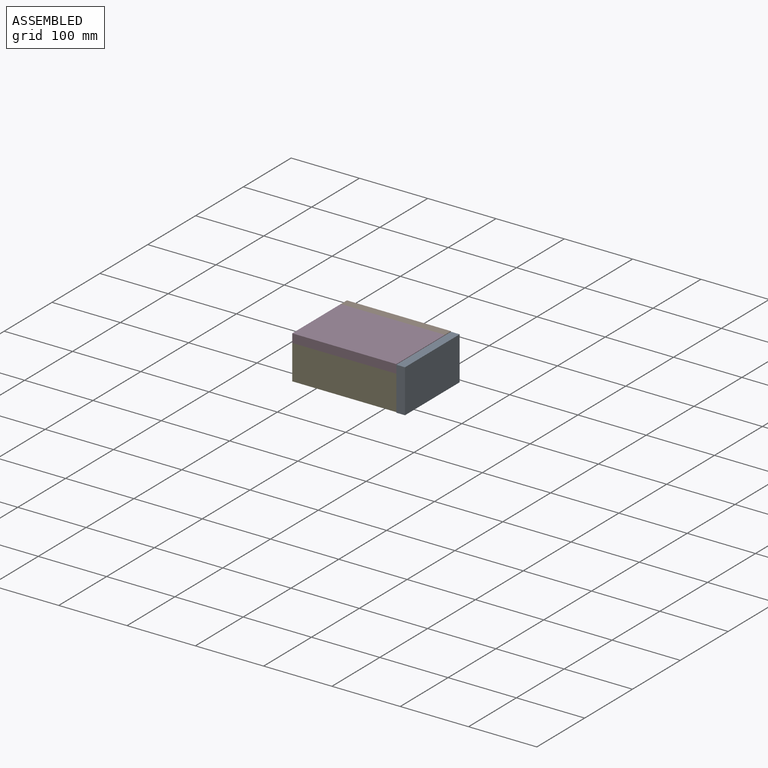
[diagram: assembled view]
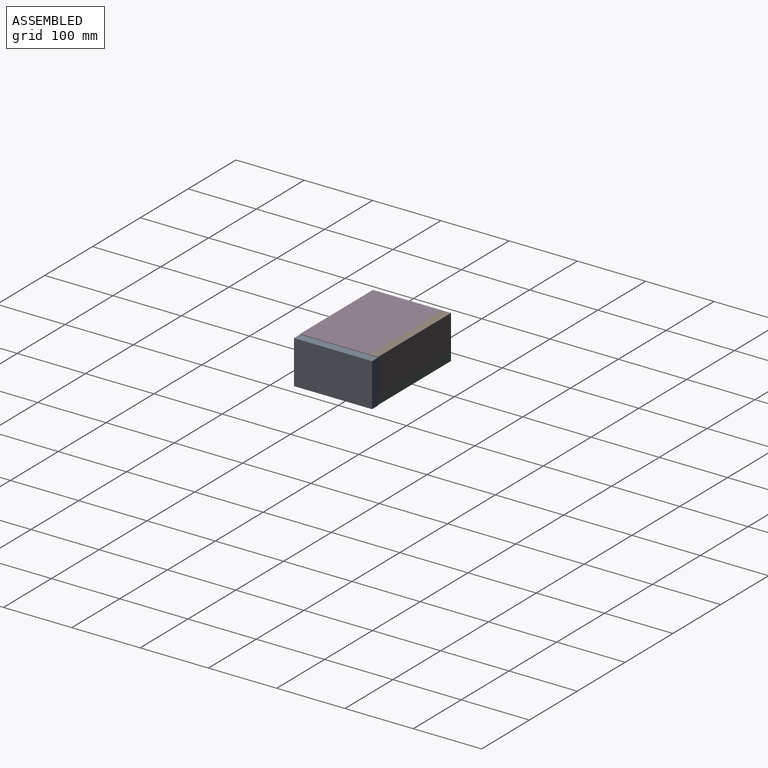
[diagram: assembled view, second angle]
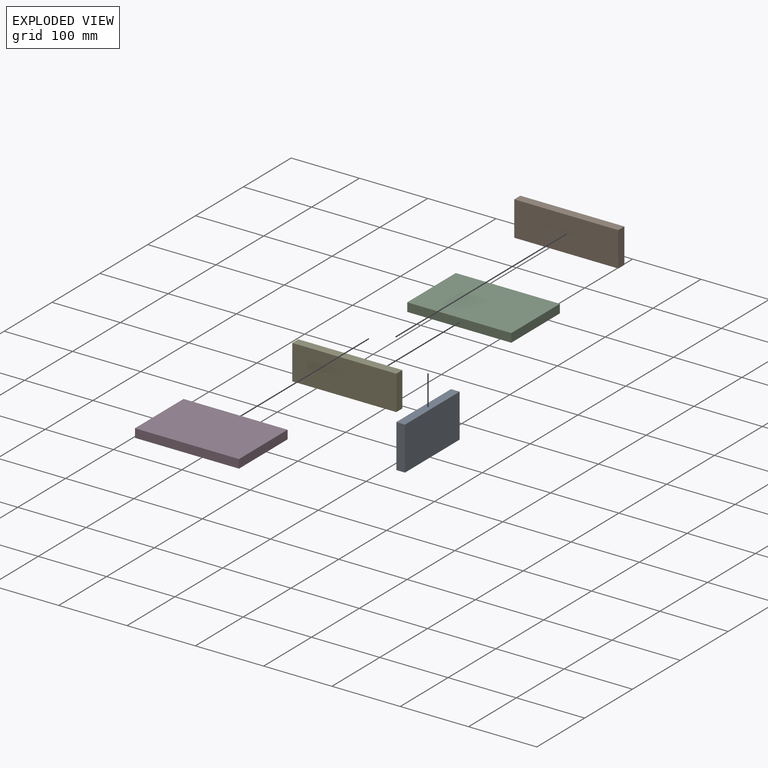
[diagram: exploded view]
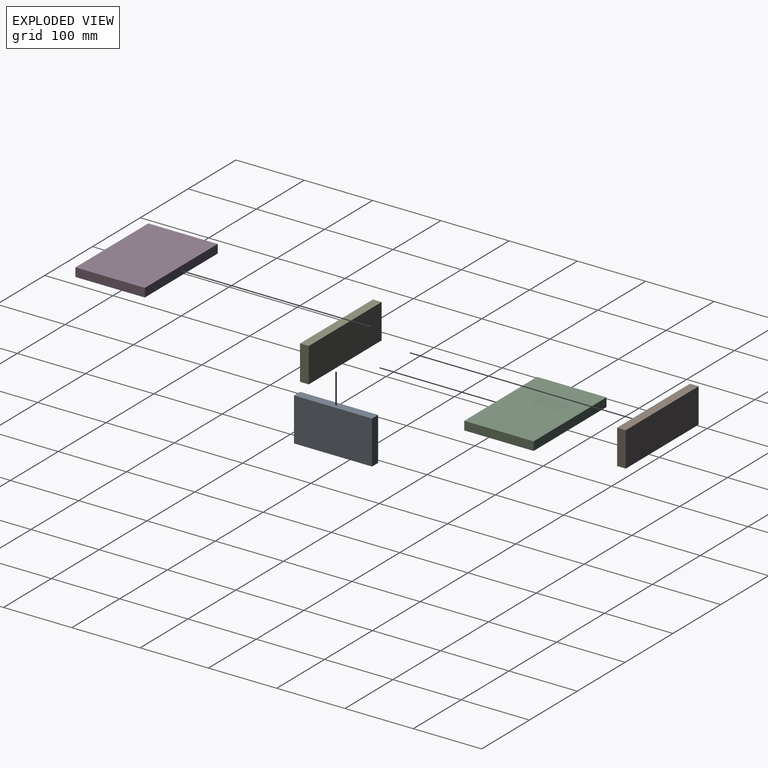
[diagram: exploded view, second angle]
ASSEMBLY  parts=5 mates=4
PART A: 6 faces, bbox 63.5x114.3x12.7 mm
  f0: plane 114.3x12.7mm, normal (1,0,0), area 1451.6mm2, adj f1,f3,f4,f5
  f1: plane 63.5x12.7mm, normal (0,1,0), area 806.5mm2, adj f0,f2,f4,f5
  f2: plane 114.3x12.7mm, normal (-1,0,0), area 1451.6mm2, adj f1,f3,f4,f5
  f3: plane 63.5x12.7mm, normal (0,-1,0), area 806.5mm2, adj f0,f2,f4,f5
  f4: plane 114.3x63.5mm, normal (0,0,1), area 7258.1mm2, adj f0,f1,f2,f3
  f5: plane 114.3x63.5mm, normal (0,0,-1), area 7258.1mm2, adj f0,f1,f2,f3
PART B: 6 faces, bbox 152.4x12.7x50.8 mm
  f0: plane 152.4x12.7mm, normal (0,0,-1), area 1935.5mm2, adj f1,f3,f4,f5
  f1: plane 50.8x12.7mm, normal (1,0,0), area 645.2mm2, adj f0,f2,f4,f5
  f2: plane 152.4x12.7mm, normal (0,0,1), area 1935.5mm2, adj f1,f3,f4,f5
  f3: plane 50.8x12.7mm, normal (-1,0,0), area 645.2mm2, adj f0,f2,f4,f5
  f4: plane 152.4x50.8mm, normal (0,-1,0), area 7741.9mm2, adj f0,f1,f2,f3
  f5: plane 152.4x50.8mm, normal (0,1,0), area 7741.9mm2, adj f0,f1,f2,f3
PART C: 6 faces, bbox 152.4x101.6x12.7 mm
  f0: plane 152.4x12.7mm, normal (0,-1,0), area 1935.5mm2, adj f1,f3,f4,f5
  f1: plane 101.6x12.7mm, normal (1,0,0), area 1290.3mm2, adj f0,f2,f4,f5
  f2: plane 152.4x12.7mm, normal (0,1,0), area 1935.5mm2, adj f1,f3,f4,f5
  f3: plane 101.6x12.7mm, normal (-1,0,0), area 1290.3mm2, adj f0,f2,f4,f5
  f4: plane 152.4x101.6mm, normal (0,0,1), area 15483.8mm2, adj f0,f1,f2,f3
  f5: plane 152.4x101.6mm, normal (0,0,-1), area 15483.8mm2, adj f0,f1,f2,f3
PART D: same geometry as C
PART E: same geometry as B
PLACE A rot(axis=(0,1,0),90deg) t=(23.02,-112.63,-23.42)mm
PLACE B t=(-53.18,-55.48,-16.29)mm
PLACE C t=(-53.18,-106.28,-54.39)mm
PLACE D t=(-53.18,-118.98,-3.59)mm
PLACE E t=(-53.18,-157.08,-28.99)mm
MATE fastened B.f4 <-> D.f2  axis (0,-1,0) through (23.02,-68.18,9.11)mm
MATE fastened C.f4 <-> B.f0  axis (0,0,1) through (23.02,-55.48,-41.69)mm
MATE fastened C.f0 <-> E.f5  axis (0,-1,0) through (23.02,-157.08,-54.39)mm
MATE slider A.f0 <-> E.f0  axis (0,0,-1) through (23.02,-169.78,-55.17)mm
